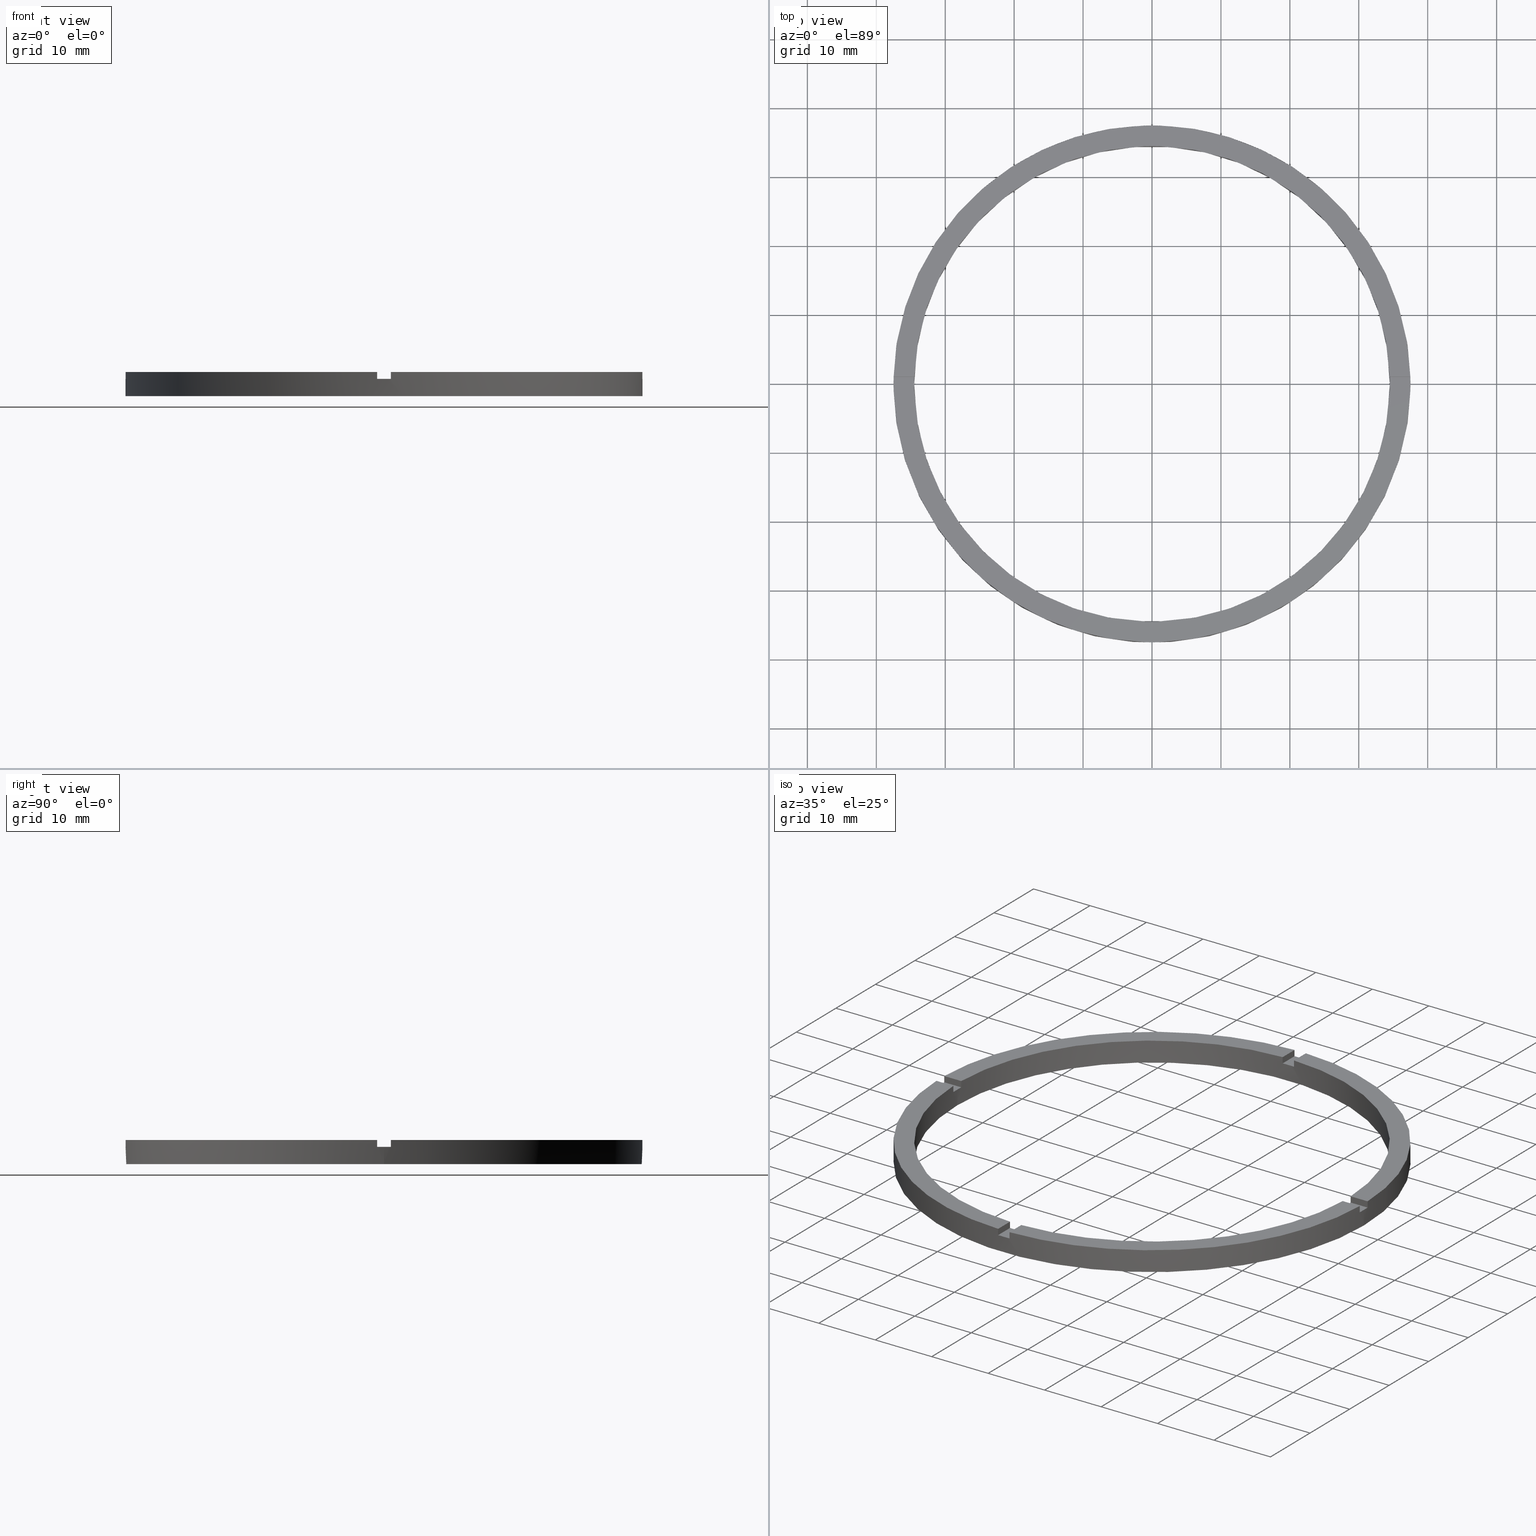
[diagram: canonical four-view strip — front | top / right | iso, engineering-drawing reading convention]
A machine part, canonical four-view strip (front | top / right | iso — engineering-drawing reading convention). The complete STEP part file that produces these views, byte-faithful:
ISO-10303-21;
HEADER;
FILE_DESCRIPTION (( 'STEP AP203' ),
    '1' );
FILE_NAME ('514155.step',
    '2024-12-26T02:42:52',
    ( 'MSI' ),
    ( '' ),
    'SwSTEP 2.0',
    'SolidWorks 2020',
    '' );
FILE_SCHEMA (( 'CONFIG_CONTROL_DESIGN' ));
ENDSEC;

DATA;
#1 = CIRCLE ( 'NONE', #656, 34.49999999999999289 ) ;
#2 = CIRCLE ( 'NONE', #723, 37.50000000000000711 ) ;
#3 = AXIS2_PLACEMENT_3D ( 'NONE', #600, #554, #716 ) ;
#4 = EDGE_CURVE ( 'NONE', #523, #440, #331, .T. ) ;
#5 = DIRECTION ( 'NONE',  ( 0.000000000000000000, 1.000000000000000000, 0.000000000000000000 ) ) ;
#6 = ADVANCED_FACE ( 'NONE', ( #79 ), #243, .T. ) ;
#7 = CARTESIAN_POINT ( 'NONE',  ( -37.48666429545313150, 0.9999999999999724665, 2.500000000000000000 ) ) ;
#8 = FACE_OUTER_BOUND ( 'NONE', #143, .T. ) ;
#9 = VECTOR ( 'NONE', #655, 1000.000000000000000 ) ;
#10 = CIRCLE ( 'NONE', #768, 34.49999999999999289 ) ;
#11 = PRODUCT_DEFINITION_FORMATION_WITH_SPECIFIED_SOURCE ( '�κ�', '', #108, .NOT_KNOWN. ) ;
#12 = CARTESIAN_POINT ( 'NONE',  ( 37.48666429545312440, -1.000000000000157430, 3.500000000000000000 ) ) ;
#13 = CIRCLE ( 'NONE', #747, 37.50000000000000711 ) ;
#14 = CIRCLE ( 'NONE', #421, 34.49999999999999289 ) ;
#15 = VECTOR ( 'NONE', #369, 1000.000000000000000 ) ;
#16 = EDGE_CURVE ( 'NONE', #732, #409, #344, .T. ) ;
#17 = ORIENTED_EDGE ( 'NONE', *, *, #16, .F. ) ;
#18 = DIRECTION ( 'NONE',  ( -1.000000000000000000, -1.951563910473907735E-16, 0.000000000000000000 ) ) ;
#19 = CARTESIAN_POINT ( 'NONE',  ( 0.9999999999998397948, -34.48550420104076153, 3.500000000000000000 ) ) ;
#20 = VECTOR ( 'NONE', #610, 1000.000000000000000 ) ;
#21 = CARTESIAN_POINT ( 'NONE',  ( -1.000000000000160316, -34.48550420104075442, 3.500000000000000000 ) ) ;
#22 = CARTESIAN_POINT ( 'NONE',  ( 0.000000000000000000, 0.000000000000000000, 2.500000000000000000 ) ) ;
#23 = VECTOR ( 'NONE', #537, 1000.000000000000000 ) ;
#24 = FACE_OUTER_BOUND ( 'NONE', #175, .T. ) ;
#25 = ORIENTED_EDGE ( 'NONE', *, *, #621, .F. ) ;
#26 = AXIS2_PLACEMENT_3D ( 'NONE', #727, #698, #261 ) ;
#27 = ORIENTED_EDGE ( 'NONE', *, *, #382, .F. ) ;
#28 = APPROVAL_STATUS ( 'not_yet_approved' ) ;
#29 = DIRECTION ( 'NONE',  ( 1.000000000000000000, 0.000000000000000000, 0.000000000000000000 ) ) ;
#30 = CARTESIAN_POINT ( 'NONE',  ( 0.000000000000000000, 0.000000000000000000, 3.500000000000000000 ) ) ;
#31 = LINE ( 'NONE', #144, #23 ) ;
#32 = DATE_TIME_ROLE ( 'creation_date' ) ;
#33 = CARTESIAN_POINT ( 'NONE',  ( 0.000000000000000000, 0.000000000000000000, 2.500000000000000000 ) ) ;
#34 = ORIENTED_EDGE ( 'NONE', *, *, #546, .T. ) ;
#35 = AXIS2_PLACEMENT_3D ( 'NONE', #497, #668, #439 ) ;
#36 = EDGE_CURVE ( 'NONE', #760, #422, #591, .T. ) ;
#37 = ORIENTED_EDGE ( 'NONE', *, *, #16, .T. ) ;
#38 = CARTESIAN_POINT ( 'NONE',  ( 34.48550420104075442, -1.000000000000157652, 2.500000000000000000 ) ) ;
#39 = PLANE ( 'NONE',  #155 ) ;
#40 = EDGE_CURVE ( 'NONE', #493, #231, #58, .T. ) ;
#41 = ORIENTED_EDGE ( 'NONE', *, *, #679, .F. ) ;
#42 = CARTESIAN_POINT ( 'NONE',  ( 0.000000000000000000, 0.000000000000000000, 3.500000000000000000 ) ) ;
#43 = ORIENTED_EDGE ( 'NONE', *, *, #82, .T. ) ;
#44 = ORIENTED_EDGE ( 'NONE', *, *, #700, .F. ) ;
#45 = DIRECTION ( 'NONE',  ( 1.000000000000000000, 1.951563910473907735E-16, 0.000000000000000000 ) ) ;
#46 = EDGE_CURVE ( 'NONE', #440, #662, #318, .T. ) ;
#47 = ORIENTED_EDGE ( 'NONE', *, *, #188, .F. ) ;
#48 = AXIS2_PLACEMENT_3D ( 'NONE', #709, #285, #222 ) ;
#49 = EDGE_CURVE ( 'NONE', #662, #440, #595, .T. ) ;
#50 = ORIENTED_EDGE ( 'NONE', *, *, #192, .F. ) ;
#51 = DIRECTION ( 'NONE',  ( -0.000000000000000000, -0.000000000000000000, -1.000000000000000000 ) ) ;
#52 = CARTESIAN_POINT ( 'NONE',  ( 0.000000000000000000, 0.000000000000000000, 2.500000000000000000 ) ) ;
#53 = VECTOR ( 'NONE', #619, 1000.000000000000000 ) ;
#54 = VECTOR ( 'NONE', #67, 1000.000000000000000 ) ;
#55 = DIRECTION ( 'NONE',  ( -1.000000000000000000, 0.000000000000000000, 0.000000000000000000 ) ) ;
#56 = EDGE_LOOP ( 'NONE', ( #210, #299, #41, #282 ) ) ;
#57 = CARTESIAN_POINT ( 'NONE',  ( 34.48550420104075442, -1.000000000000157652, 3.500000000000000000 ) ) ;
#58 = LINE ( 'NONE', #397, #53 ) ;
#59 = AXIS2_PLACEMENT_3D ( 'NONE', #532, #614, #419 ) ;
#60 = ORIENTED_EDGE ( 'NONE', *, *, #46, .T. ) ;
#61 = VECTOR ( 'NONE', #558, 1000.000000000000000 ) ;
#62 = PLANE ( 'NONE',  #424 ) ;
#63 = ORIENTED_EDGE ( 'NONE', *, *, #696, .T. ) ;
#64 = LINE ( 'NONE', #148, #326 ) ;
#65 = ORIENTED_EDGE ( 'NONE', *, *, #661, .F. ) ;
#66 = CARTESIAN_POINT ( 'NONE',  ( 0.000000000000000000, 0.000000000000000000, 2.500000000000000000 ) ) ;
#67 = DIRECTION ( 'NONE',  ( -0.000000000000000000, -1.000000000000000000, -0.000000000000000000 ) ) ;
#68 = DIRECTION ( 'NONE',  ( 0.000000000000000000, 0.000000000000000000, 1.000000000000000000 ) ) ;
#69 = ORIENTED_EDGE ( 'NONE', *, *, #188, .T. ) ;
#70 = FACE_OUTER_BOUND ( 'NONE', #420, .T. ) ;
#71 = VERTEX_POINT ( 'NONE', #195 ) ;
#72 = CARTESIAN_POINT ( 'NONE',  ( 0.000000000000000000, 0.000000000000000000, 3.500000000000000000 ) ) ;
#73 = CARTESIAN_POINT ( 'NONE',  ( 0.000000000000000000, 0.000000000000000000, 2.500000000000000000 ) ) ;
#74 = DIRECTION ( 'NONE',  ( 1.301042606982605074E-16, -1.000000000000000000, 0.000000000000000000 ) ) ;
#75 = CARTESIAN_POINT ( 'NONE',  ( 0.000000000000000000, 0.000000000000000000, 2.500000000000000000 ) ) ;
#76 = AXIS2_PLACEMENT_3D ( 'NONE', #464, #198, #254 ) ;
#77 = FACE_OUTER_BOUND ( 'NONE', #585, .T. ) ;
#78 = VECTOR ( 'NONE', #221, 1000.000000000000000 ) ;
#79 = FACE_OUTER_BOUND ( 'NONE', #152, .T. ) ;
#80 = VECTOR ( 'NONE', #715, 1000.000000000000000 ) ;
#81 = CARTESIAN_POINT ( 'NONE',  ( 34.48550420104076153, 0.9999999999998423483, 2.500000000000000000 ) ) ;
#82 = EDGE_CURVE ( 'NONE', #510, #342, #322, .T. ) ;
#83 = CYLINDRICAL_SURFACE ( 'NONE', #274, 34.49999999999999289 ) ;
#84 = APPLICATION_CONTEXT ( 'configuration controlled 3d designs of mechanical parts and assemblies' ) ;
#85 = CARTESIAN_POINT ( 'NONE',  ( 0.000000000000000000, 0.000000000000000000, 3.500000000000000000 ) ) ;
#86 = VECTOR ( 'NONE', #632, 1000.000000000000000 ) ;
#87 = VECTOR ( 'NONE', #178, 1000.000000000000000 ) ;
#88 = FACE_OUTER_BOUND ( 'NONE', #227, .T. ) ;
#89 = VECTOR ( 'NONE', #127, 1000.000000000000000 ) ;
#90 = CARTESIAN_POINT ( 'NONE',  ( -1.000000000000025313, 37.48666429545312440, 3.500000000000000000 ) ) ;
#91 = LINE ( 'NONE', #452, #348 ) ;
#92 = CIRCLE ( 'NONE', #3, 37.50000000000000711 ) ;
#93 = SECURITY_CLASSIFICATION ( '', '', #166 ) ;
#94 = APPLICATION_CONTEXT ( 'configuration controlled 3d designs of mechanical parts and assemblies' ) ;
#95 = CARTESIAN_POINT ( 'NONE',  ( -37.48666429545312440, -1.000000000000027534, 2.500000000000000000 ) ) ;
#96 = EDGE_CURVE ( 'NONE', #217, #687, #598, .T. ) ;
#97 = LINE ( 'NONE', #21, #360 ) ;
#98 = COORDINATED_UNIVERSAL_TIME_OFFSET ( 8, 0, .AHEAD. ) ;
#99 = FACE_OUTER_BOUND ( 'NONE', #736, .T. ) ;
#100 = FACE_OUTER_BOUND ( 'NONE', #405, .T. ) ;
#101 = EDGE_CURVE ( 'NONE', #754, #298, #64, .T. ) ;
#102 = CARTESIAN_POINT ( 'NONE',  ( -1.000000000000025313, 27.50000000000000355, 2.500000000000000000 ) ) ;
#103 = LOCAL_TIME ( 10, 42, 52.00000000000000000, #629 ) ;
#104 = LINE ( 'NONE', #557, #643 ) ;
#105 = PERSON_AND_ORGANIZATION ( #584, #375 ) ;
#106 = APPROVAL_ROLE ( '' ) ;
#107 = DATE_AND_TIME ( #387, #120 ) ;
#108 = PRODUCT ( '514155', '514155', '', ( #659 ) ) ;
#109 = LINE ( 'NONE', #179, #368 ) ;
#110 = AXIS2_PLACEMENT_3D ( 'NONE', #73, #503, #752 ) ;
#111 = VECTOR ( 'NONE', #612, 1000.000000000000000 ) ;
#112 =( NAMED_UNIT ( * ) PLANE_ANGLE_UNIT ( ) SI_UNIT ( $, .RADIAN. ) );
#113 = DIRECTION ( 'NONE',  ( 1.000000000000000000, 0.000000000000000000, 0.000000000000000000 ) ) ;
#114 = CALENDAR_DATE ( 2024, 26, 12 ) ;
#115 = AXIS2_PLACEMENT_3D ( 'NONE', #465, #470, #647 ) ;
#116 = VECTOR ( 'NONE', #134, 1000.000000000000000 ) ;
#117 = DATE_AND_TIME ( #366, #103 ) ;
#118 = CARTESIAN_POINT ( 'NONE',  ( 37.48666429545313150, 0.9999999999998425704, 3.500000000000000000 ) ) ;
#119 = PERSON_AND_ORGANIZATION ( #584, #375 ) ;
#120 = LOCAL_TIME ( 10, 42, 52.00000000000000000, #123 ) ;
#121 = DIRECTION ( 'NONE',  ( 1.000000000000000000, 0.000000000000000000, 0.000000000000000000 ) ) ;
#122 = CARTESIAN_POINT ( 'NONE',  ( 0.000000000000000000, 0.000000000000000000, 3.500000000000000000 ) ) ;
#123 = COORDINATED_UNIVERSAL_TIME_OFFSET ( 8, 0, .AHEAD. ) ;
#124 = DIRECTION ( 'NONE',  ( 0.000000000000000000, 0.000000000000000000, 1.000000000000000000 ) ) ;
#125 = DIRECTION ( 'NONE',  ( 1.301042606982605074E-16, -1.000000000000000000, 0.000000000000000000 ) ) ;
#126 = ORIENTED_EDGE ( 'NONE', *, *, #101, .T. ) ;
#127 = DIRECTION ( 'NONE',  ( 1.000000000000000000, 1.951563910473907735E-16, -0.000000000000000000 ) ) ;
#128 = VERTEX_POINT ( 'NONE', #396 ) ;
#129 = CARTESIAN_POINT ( 'NONE',  ( 0.9999999999999746869, 27.50000000000000355, 2.500000000000000000 ) ) ;
#130 = ORIENTED_EDGE ( 'NONE', *, *, #382, .T. ) ;
#131 = ORIENTED_EDGE ( 'NONE', *, *, #216, .T. ) ;
#132 = CARTESIAN_POINT ( 'NONE',  ( 37.50000000000000711, 4.592425496802575156E-15, 0.000000000000000000 ) ) ;
#133 = AXIS2_PLACEMENT_3D ( 'NONE', #199, #684, #719 ) ;
#134 = DIRECTION ( 'NONE',  ( 1.000000000000000000, 1.951563910473907735E-16, -0.000000000000000000 ) ) ;
#135 = VECTOR ( 'NONE', #577, 1000.000000000000000 ) ;
#136 = ORIENTED_EDGE ( 'NONE', *, *, #664, .F. ) ;
#137 = EDGE_CURVE ( 'NONE', #217, #515, #592, .T. ) ;
#138 = ORIENTED_EDGE ( 'NONE', *, *, #425, .T. ) ;
#139 = CARTESIAN_POINT ( 'NONE',  ( -37.50000000000000711, 0.000000000000000000, 3.500000000000000000 ) ) ;
#140 = ADVANCED_FACE ( 'NONE', ( #334 ), #62, .T. ) ;
#141 = ORIENTED_EDGE ( 'NONE', *, *, #169, .T. ) ;
#142 = CC_DESIGN_PERSON_AND_ORGANIZATION_ASSIGNMENT ( #119, #203, ( #11 ) ) ;
#143 = EDGE_LOOP ( 'NONE', ( #654, #27, #568, #136, #735, #236, #37, #563, #164, #220, #310, #498 ) ) ;
#144 = CARTESIAN_POINT ( 'NONE',  ( 0.9999999999999746869, 34.48550420104076153, 3.500000000000000000 ) ) ;
#145 = CARTESIAN_POINT ( 'NONE',  ( -34.48550420104075442, -1.000000000000026867, 3.500000000000000000 ) ) ;
#146 = ORIENTED_EDGE ( 'NONE', *, *, #714, .T. ) ;
#147 = ORIENTED_EDGE ( 'NONE', *, *, #255, .F. ) ;
#148 = CARTESIAN_POINT ( 'NONE',  ( 27.49999999999999645, -1.000000000000158096, 2.500000000000000000 ) ) ;
#149 = ORIENTED_EDGE ( 'NONE', *, *, #46, .F. ) ;
#150 = PRODUCT_DEFINITION ( 'δ֪', '', #11, #462 ) ;
#151 = ADVANCED_FACE ( 'NONE', ( #88 ), #538, .F. ) ;
#152 = EDGE_LOOP ( 'NONE', ( #502, #224, #65, #740 ) ) ;
#153 = CARTESIAN_POINT ( 'NONE',  ( 0.000000000000000000, 0.000000000000000000, 3.500000000000000000 ) ) ;
#154 = VERTEX_POINT ( 'NONE', #305 ) ;
#155 = AXIS2_PLACEMENT_3D ( 'NONE', #122, #170, #650 ) ;
#156 = DIRECTION ( 'NONE',  ( 0.000000000000000000, 0.000000000000000000, 1.000000000000000000 ) ) ;
#157 = CARTESIAN_POINT ( 'NONE',  ( 0.000000000000000000, 0.000000000000000000, 0.000000000000000000 ) ) ;
#158 = ORIENTED_EDGE ( 'NONE', *, *, #513, .F. ) ;
#159 = CARTESIAN_POINT ( 'NONE',  ( 34.48550420104076153, 0.9999999999998423483, 3.500000000000000000 ) ) ;
#160 = APPROVAL_ROLE ( '' ) ;
#161 = VERTEX_POINT ( 'NONE', #118 ) ;
#162 = DIRECTION ( 'NONE',  ( -0.000000000000000000, -0.000000000000000000, -1.000000000000000000 ) ) ;
#163 = EDGE_CURVE ( 'NONE', #687, #71, #623, .T. ) ;
#164 = ORIENTED_EDGE ( 'NONE', *, *, #599, .T. ) ;
#165 = ORIENTED_EDGE ( 'NONE', *, *, #338, .F. ) ;
#166 = SECURITY_CLASSIFICATION_LEVEL ( 'unclassified' ) ;
#167 = CARTESIAN_POINT ( 'NONE',  ( 0.000000000000000000, 0.000000000000000000, 2.500000000000000000 ) ) ;
#168 = ORIENTED_EDGE ( 'NONE', *, *, #388, .F. ) ;
#169 = EDGE_CURVE ( 'NONE', #691, #219, #628, .T. ) ;
#170 = DIRECTION ( 'NONE',  ( 0.000000000000000000, 0.000000000000000000, 1.000000000000000000 ) ) ;
#171 = PERSON_AND_ORGANIZATION_ROLE ( 'creator' ) ;
#172 = DIRECTION ( 'NONE',  ( 0.000000000000000000, 0.000000000000000000, 1.000000000000000000 ) ) ;
#173 = ORIENTED_EDGE ( 'NONE', *, *, #4, .T. ) ;
#174 = ORIENTED_EDGE ( 'NONE', *, *, #550, .F. ) ;
#175 = EDGE_LOOP ( 'NONE', ( #438, #743, #426, #428 ) ) ;
#176 = CARTESIAN_POINT ( 'NONE',  ( 27.49999999999999645, -1.000000000000158096, 3.500000000000000000 ) ) ;
#177 = DIRECTION ( 'NONE',  ( 1.000000000000000000, 0.000000000000000000, 0.000000000000000000 ) ) ;
#178 = DIRECTION ( 'NONE',  ( -1.301042606982605074E-16, 1.000000000000000000, -0.000000000000000000 ) ) ;
#179 = CARTESIAN_POINT ( 'NONE',  ( 34.48550420104075442, -1.000000000000157652, 3.500000000000000000 ) ) ;
#180 = ORIENTED_EDGE ( 'NONE', *, *, #163, .F. ) ;
#181 = AXIS2_PLACEMENT_3D ( 'NONE', #66, #252, #193 ) ;
#182 = AXIS2_PLACEMENT_3D ( 'NONE', #167, #461, #403 ) ;
#183 = CARTESIAN_POINT ( 'NONE',  ( 0.9999999999999746869, 27.50000000000000355, 2.500000000000000000 ) ) ;
#184 = CARTESIAN_POINT ( 'NONE',  ( -1.000000000000161204, -27.50000000000018474, 3.500000000000000000 ) ) ;
#185 = CARTESIAN_POINT ( 'NONE',  ( 0.000000000000000000, 0.000000000000000000, 0.000000000000000000 ) ) ;
#186 = AXIS2_PLACEMENT_3D ( 'NONE', #228, #540, #444 ) ;
#187 = CARTESIAN_POINT ( 'NONE',  ( -27.50000000000019185, 0.9999999999999744649, 3.500000000000000000 ) ) ;
#188 = EDGE_CURVE ( 'NONE', #730, #71, #626, .T. ) ;
#189 = CARTESIAN_POINT ( 'NONE',  ( 0.000000000000000000, 0.000000000000000000, 2.500000000000000000 ) ) ;
#190 = EDGE_CURVE ( 'NONE', #230, #128, #346, .T. ) ;
#191 = DIRECTION ( 'NONE',  ( -6.505213034913025371E-17, 1.000000000000000000, 0.000000000000000000 ) ) ;
#192 = EDGE_CURVE ( 'NONE', #523, #758, #92, .T. ) ;
#193 = DIRECTION ( 'NONE',  ( 1.000000000000000000, 0.000000000000000000, 0.000000000000000000 ) ) ;
#194 = CARTESIAN_POINT ( 'NONE',  ( 0.9999999999998389066, -27.50000000000018474, 3.500000000000000000 ) ) ;
#195 = CARTESIAN_POINT ( 'NONE',  ( 0.9999999999998397948, -34.48550420104076153, 2.500000000000000000 ) ) ;
#196 = SHAPE_DEFINITION_REPRESENTATION ( #301, #548 ) ;
#197 = AXIS2_PLACEMENT_3D ( 'NONE', #306, #453, #720 ) ;
#198 = DIRECTION ( 'NONE',  ( -0.000000000000000000, -0.000000000000000000, -1.000000000000000000 ) ) ;
#199 = CARTESIAN_POINT ( 'NONE',  ( 0.000000000000000000, 0.000000000000000000, 2.500000000000000000 ) ) ;
#200 = ADVANCED_FACE ( 'NONE', ( #100 ), #378, .T. ) ;
#201 = CC_DESIGN_PERSON_AND_ORGANIZATION_ASSIGNMENT ( #363, #208, ( #93 ) ) ;
#202 = CARTESIAN_POINT ( 'NONE',  ( 0.9999999999999746869, 37.48666429545313150, 3.500000000000000000 ) ) ;
#203 = PERSON_AND_ORGANIZATION_ROLE ( 'design_supplier' ) ;
#204 = CARTESIAN_POINT ( 'NONE',  ( 0.000000000000000000, 0.000000000000000000, 3.500000000000000000 ) ) ;
#205 = AXIS2_PLACEMENT_3D ( 'NONE', #573, #413, #121 ) ;
#206 = DIRECTION ( 'NONE',  ( 1.000000000000000000, 0.000000000000000000, 0.000000000000000000 ) ) ;
#207 = AXIS2_PLACEMENT_3D ( 'NONE', #276, #590, #753 ) ;
#208 = PERSON_AND_ORGANIZATION_ROLE ( 'classification_officer' ) ;
#209 = DIRECTION ( 'NONE',  ( 1.000000000000000000, 0.000000000000000000, -0.000000000000000000 ) ) ;
#210 = ORIENTED_EDGE ( 'NONE', *, *, #476, .T. ) ;
#211 = AXIS2_PLACEMENT_3D ( 'NONE', #367, #303, #45 ) ;
#212 = EDGE_CURVE ( 'NONE', #613, #491, #365, .T. ) ;
#213 = ORIENTED_EDGE ( 'NONE', *, *, #694, .T. ) ;
#214 = ORIENTED_EDGE ( 'NONE', *, *, #661, .T. ) ;
#215 = ORIENTED_EDGE ( 'NONE', *, *, #190, .T. ) ;
#216 = EDGE_CURVE ( 'NONE', #340, #242, #13, .T. ) ;
#217 = VERTEX_POINT ( 'NONE', #349 ) ;
#218 = CARTESIAN_POINT ( 'NONE',  ( 0.000000000000000000, 0.000000000000000000, 0.000000000000000000 ) ) ;
#219 = VERTEX_POINT ( 'NONE', #474 ) ;
#220 = ORIENTED_EDGE ( 'NONE', *, *, #216, .F. ) ;
#221 = DIRECTION ( 'NONE',  ( -0.000000000000000000, -0.000000000000000000, -1.000000000000000000 ) ) ;
#222 = DIRECTION ( 'NONE',  ( 1.000000000000000000, 0.000000000000000000, 0.000000000000000000 ) ) ;
#223 = EDGE_LOOP ( 'NONE', ( #748, #578, #312, #141 ) ) ;
#224 = ORIENTED_EDGE ( 'NONE', *, *, #297, .F. ) ;
#225 = EDGE_CURVE ( 'NONE', #754, #493, #275, .T. ) ;
#226 = ORIENTED_EDGE ( 'NONE', *, *, #583, .F. ) ;
#227 = EDGE_LOOP ( 'NONE', ( #521, #414, #519, #17 ) ) ;
#228 = CARTESIAN_POINT ( 'NONE',  ( 27.49999999999999645, -1.000000000000158096, 2.500000000000000000 ) ) ;
#229 = EDGE_CURVE ( 'NONE', #219, #672, #526, .T. ) ;
#230 = VERTEX_POINT ( 'NONE', #7 ) ;
#231 = VERTEX_POINT ( 'NONE', #652 ) ;
#232 = ADVANCED_FACE ( 'NONE', ( #779 ), #320, .T. ) ;
#233 = VERTEX_POINT ( 'NONE', #12 ) ;
#234 = CARTESIAN_POINT ( 'NONE',  ( -37.50000000000000711, 0.000000000000000000, 0.000000000000000000 ) ) ;
#235 = ORIENTED_EDGE ( 'NONE', *, *, #546, .F. ) ;
#236 = ORIENTED_EDGE ( 'NONE', *, *, #693, .F. ) ;
#237 = ORIENTED_EDGE ( 'NONE', *, *, #700, .T. ) ;
#238 = CARTESIAN_POINT ( 'NONE',  ( 0.000000000000000000, 0.000000000000000000, 3.500000000000000000 ) ) ;
#239 = EDGE_LOOP ( 'NONE', ( #50, #173, #60, #683, #737, #215, #588, #237, #329, #339, #165, #674 ) ) ;
#240 = DIRECTION ( 'NONE',  ( 1.301042606982605074E-16, -1.000000000000000000, 0.000000000000000000 ) ) ;
#241 = DIRECTION ( 'NONE',  ( -1.000000000000000000, -1.301042606982605074E-16, 0.000000000000000000 ) ) ;
#242 = VERTEX_POINT ( 'NONE', #95 ) ;
#243 = PLANE ( 'NONE',  #197 ) ;
#244 = EDGE_LOOP ( 'NONE', ( #43, #408, #25, #44 ) ) ;
#245 = ORIENTED_EDGE ( 'NONE', *, *, #330, .T. ) ;
#246 = ORIENTED_EDGE ( 'NONE', *, *, #212, .T. ) ;
#247 = DIRECTION ( 'NONE',  ( -1.000000000000000000, -6.505213034913025371E-17, 0.000000000000000000 ) ) ;
#248 = CARTESIAN_POINT ( 'NONE',  ( 0.9999999999998400169, -37.48666429545313150, 3.500000000000000000 ) ) ;
#249 = ORIENTED_EDGE ( 'NONE', *, *, #513, .T. ) ;
#250 = ORIENTED_EDGE ( 'NONE', *, *, #353, .F. ) ;
#251 = ORIENTED_EDGE ( 'NONE', *, *, #212, .F. ) ;
#252 = DIRECTION ( 'NONE',  ( -0.000000000000000000, 0.000000000000000000, 1.000000000000000000 ) ) ;
#253 = AXIS2_PLACEMENT_3D ( 'NONE', #42, #124, #177 ) ;
#254 = DIRECTION ( 'NONE',  ( -1.000000000000000000, 0.000000000000000000, 0.000000000000000000 ) ) ;
#255 = EDGE_CURVE ( 'NONE', #427, #512, #547, .T. ) ;
#256 = CIRCLE ( 'NONE', #572, 34.49999999999999289 ) ;
#257 = FACE_OUTER_BOUND ( 'NONE', #404, .T. ) ;
#258 = DIRECTION ( 'NONE',  ( 0.000000000000000000, 0.000000000000000000, 1.000000000000000000 ) ) ;
#259 = CARTESIAN_POINT ( 'NONE',  ( 0.9999999999998397948, -34.48550420104076153, 3.500000000000000000 ) ) ;
#260 = VECTOR ( 'NONE', #162, 1000.000000000000000 ) ;
#261 = DIRECTION ( 'NONE',  ( 1.000000000000000000, 0.000000000000000000, 0.000000000000000000 ) ) ;
#262 = LINE ( 'NONE', #411, #273 ) ;
#263 = CC_DESIGN_APPROVAL ( #607, ( #150 ) ) ;
#264 = LINE ( 'NONE', #202, #555 ) ;
#265 = CARTESIAN_POINT ( 'NONE',  ( -34.49999999999999289, 0.000000000000000000, 0.000000000000000000 ) ) ;
#266 = LINE ( 'NONE', #184, #284 ) ;
#267 = DIRECTION ( 'NONE',  ( -0.000000000000000000, -0.000000000000000000, -1.000000000000000000 ) ) ;
#268 = CYLINDRICAL_SURFACE ( 'NONE', #323, 37.50000000000000711 ) ;
#269 = VECTOR ( 'NONE', #689, 1000.000000000000000 ) ;
#270 = CIRCLE ( 'NONE', #317, 34.49999999999999289 ) ;
#271 = APPLICATION_PROTOCOL_DEFINITION ( 'international standard', 'config_control_design', 1994, #84 ) ;
#272 = DIRECTION ( 'NONE',  ( 0.000000000000000000, 0.000000000000000000, 1.000000000000000000 ) ) ;
#273 = VECTOR ( 'NONE', #18, 1000.000000000000000 ) ;
#274 = AXIS2_PLACEMENT_3D ( 'NONE', #782, #688, #395 ) ;
#275 = CIRCLE ( 'NONE', #702, 34.49999999999999289 ) ;
#276 = CARTESIAN_POINT ( 'NONE',  ( 0.000000000000000000, 0.000000000000000000, 2.500000000000000000 ) ) ;
#277 = CIRCLE ( 'NONE', #207, 34.49999999999999289 ) ;
#278 = CIRCLE ( 'NONE', #692, 37.50000000000000711 ) ;
#279 = DIRECTION ( 'NONE',  ( 0.000000000000000000, 0.000000000000000000, 1.000000000000000000 ) ) ;
#280 = CARTESIAN_POINT ( 'NONE',  ( 0.000000000000000000, 0.000000000000000000, 3.500000000000000000 ) ) ;
#281 = LINE ( 'NONE', #765, #536 ) ;
#282 = ORIENTED_EDGE ( 'NONE', *, *, #562, .F. ) ;
#283 = CARTESIAN_POINT ( 'NONE',  ( -27.50000000000019185, -1.000000000000025535, 2.500000000000000000 ) ) ;
#284 = VECTOR ( 'NONE', #240, 1000.000000000000000 ) ;
#285 = DIRECTION ( 'NONE',  ( -0.000000000000000000, 0.000000000000000000, 1.000000000000000000 ) ) ;
#286 = EDGE_CURVE ( 'NONE', #682, #409, #539, .T. ) ;
#287 = CARTESIAN_POINT ( 'NONE',  ( 34.49999999999999289, 4.225031457058367344E-15, 2.500000000000000000 ) ) ;
#288 = LINE ( 'NONE', #187, #296 ) ;
#289 = PRODUCT_RELATED_PRODUCT_CATEGORY ( 'detail', '', ( #108 ) ) ;
#290 = FACE_OUTER_BOUND ( 'NONE', #430, .T. ) ;
#291 = ORIENTED_EDGE ( 'NONE', *, *, #456, .T. ) ;
#292 = LINE ( 'NONE', #761, #559 ) ;
#293 = ORIENTED_EDGE ( 'NONE', *, *, #49, .F. ) ;
#294 = AXIS2_PLACEMENT_3D ( 'NONE', #777, #68, #506 ) ;
#295 = PLANE ( 'NONE',  #186 ) ;
#296 = VECTOR ( 'NONE', #477, 1000.000000000000000 ) ;
#297 = EDGE_CURVE ( 'NONE', #760, #154, #10, .T. ) ;
#298 = VERTEX_POINT ( 'NONE', #746 ) ;
#299 = ORIENTED_EDGE ( 'NONE', *, *, #255, .T. ) ;
#300 = ORIENTED_EDGE ( 'NONE', *, *, #481, .T. ) ;
#301 = PRODUCT_DEFINITION_SHAPE ( 'NONE', 'NONE',  #150 ) ;
#302 = CARTESIAN_POINT ( 'NONE',  ( -1.000000000000161204, -27.50000000000018474, 2.500000000000000000 ) ) ;
#303 = DIRECTION ( 'NONE',  ( 1.951563910473907735E-16, -1.000000000000000000, 0.000000000000000000 ) ) ;
#304 = ORIENTED_EDGE ( 'NONE', *, *, #40, .F. ) ;
#305 = CARTESIAN_POINT ( 'NONE',  ( -1.000000000000160316, -34.48550420104075442, 3.500000000000000000 ) ) ;
#306 = CARTESIAN_POINT ( 'NONE',  ( 0.000000000000000000, 0.000000000000000000, 3.500000000000000000 ) ) ;
#307 = CC_DESIGN_PERSON_AND_ORGANIZATION_ASSIGNMENT ( #641, #407, ( #11 ) ) ;
#308 = ADVANCED_FACE ( 'NONE', ( #783 ), #333, .T. ) ;
#309 = VERTEX_POINT ( 'NONE', #328 ) ;
#310 = ORIENTED_EDGE ( 'NONE', *, *, #669, .T. ) ;
#311 = CARTESIAN_POINT ( 'NONE',  ( -27.50000000000019185, -1.000000000000025535, 3.500000000000000000 ) ) ;
#312 = ORIENTED_EDGE ( 'NONE', *, *, #330, .F. ) ;
#313 = CARTESIAN_POINT ( 'NONE',  ( 0.9999999999998400169, -37.48666429545313150, 2.500000000000000000 ) ) ;
#314 = ORIENTED_EDGE ( 'NONE', *, *, #388, .T. ) ;
#315 = DIRECTION ( 'NONE',  ( 1.000000000000000000, 6.505213034913025371E-17, 0.000000000000000000 ) ) ;
#316 = AXIS2_PLACEMENT_3D ( 'NONE', #460, #642, #522 ) ;
#317 = AXIS2_PLACEMENT_3D ( 'NONE', #30, #697, #206 ) ;
#318 = CIRCLE ( 'NONE', #337, 37.50000000000000711 ) ;
#319 = ADVANCED_FACE ( 'NONE', ( #781 ), #739, .F. ) ;
#320 = PLANE ( 'NONE',  #596 ) ;
#321 = ORIENTED_EDGE ( 'NONE', *, *, #714, .F. ) ;
#322 = LINE ( 'NONE', #566, #54 ) ;
#323 = AXIS2_PLACEMENT_3D ( 'NONE', #153, #520, #55 ) ;
#324 = VECTOR ( 'NONE', #772, 1000.000000000000000 ) ;
#325 = DIRECTION ( 'NONE',  ( 0.000000000000000000, 0.000000000000000000, 1.000000000000000000 ) ) ;
#326 = VECTOR ( 'NONE', #315, 1000.000000000000000 ) ;
#327 = CARTESIAN_POINT ( 'NONE',  ( 37.48666429545313150, 0.9999999999998425704, 2.500000000000000000 ) ) ;
#328 = CARTESIAN_POINT ( 'NONE',  ( 0.9999999999999746869, 34.48550420104076153, 3.500000000000000000 ) ) ;
#329 = ORIENTED_EDGE ( 'NONE', *, *, #229, .F. ) ;
#330 = EDGE_CURVE ( 'NONE', #691, #412, #1, .T. ) ;
#331 = LINE ( 'NONE', #615, #324 ) ;
#332 = VECTOR ( 'NONE', #450, 1000.000000000000000 ) ;
#333 = PLANE ( 'NONE',  #182 ) ;
#334 = FACE_OUTER_BOUND ( 'NONE', #516, .T. ) ;
#335 = DIRECTION ( 'NONE',  ( -1.000000000000000000, 0.000000000000000000, 0.000000000000000000 ) ) ;
#336 = DATE_TIME_ROLE ( 'classification_date' ) ;
#337 = AXIS2_PLACEMENT_3D ( 'NONE', #157, #717, #500 ) ;
#338 = EDGE_CURVE ( 'NONE', #161, #447, #534, .T. ) ;
#339 = ORIENTED_EDGE ( 'NONE', *, *, #473, .T. ) ;
#340 = VERTEX_POINT ( 'NONE', #423 ) ;
#341 = LINE ( 'NONE', #311, #116 ) ;
#342 = VERTEX_POINT ( 'NONE', #429 ) ;
#343 = APPROVAL_STATUS ( 'not_yet_approved' ) ;
#344 = LINE ( 'NONE', #389, #332 ) ;
#345 = LINE ( 'NONE', #139, #78 ) ;
#346 = LINE ( 'NONE', #492, #356 ) ;
#347 = CC_DESIGN_DATE_AND_TIME_ASSIGNMENT ( #117, #336, ( #93 ) ) ;
#348 = VECTOR ( 'NONE', #5, 1000.000000000000000 ) ;
#349 = CARTESIAN_POINT ( 'NONE',  ( 0.9999999999998400169, -37.48666429545313150, 3.500000000000000000 ) ) ;
#350 = CIRCLE ( 'NONE', #181, 37.50000000000000711 ) ;
#351 = VECTOR ( 'NONE', #449, 1000.000000000000000 ) ;
#352 = CARTESIAN_POINT ( 'NONE',  ( -1.000000000000025313, 37.48666429545312440, 3.500000000000000000 ) ) ;
#353 = EDGE_CURVE ( 'NONE', #613, #576, #277, .T. ) ;
#354 = DIRECTION ( 'NONE',  ( 1.000000000000000000, 0.000000000000000000, 0.000000000000000000 ) ) ;
#355 = LINE ( 'NONE', #352, #620 ) ;
#356 = VECTOR ( 'NONE', #358, 1000.000000000000000 ) ;
#357 = DIRECTION ( 'NONE',  ( 1.000000000000000000, 0.000000000000000000, -0.000000000000000000 ) ) ;
#358 = DIRECTION ( 'NONE',  ( 0.000000000000000000, 0.000000000000000000, 1.000000000000000000 ) ) ;
#359 = APPROVAL_PERSON_ORGANIZATION ( #105, #607, #160 ) ;
#360 = VECTOR ( 'NONE', #279, 1000.000000000000000 ) ;
#361 = LOCAL_TIME ( 10, 42, 52.00000000000000000, #98 ) ;
#362 = CIRCLE ( 'NONE', #205, 34.49999999999999289 ) ;
#363 = PERSON_AND_ORGANIZATION ( #584, #375 ) ;
#364 = AXIS2_PLACEMENT_3D ( 'NONE', #218, #646, #651 ) ;
#365 = LINE ( 'NONE', #479, #15 ) ;
#366 = CALENDAR_DATE ( 2024, 26, 12 ) ;
#367 = CARTESIAN_POINT ( 'NONE',  ( -27.50000000000019185, -1.000000000000025535, 2.500000000000000000 ) ) ;
#368 = VECTOR ( 'NONE', #483, 1000.000000000000000 ) ;
#369 = DIRECTION ( 'NONE',  ( 0.000000000000000000, 0.000000000000000000, 1.000000000000000000 ) ) ;
#370 = DATE_AND_TIME ( #114, #361 ) ;
#371 = LINE ( 'NONE', #176, #135 ) ;
#372 = COORDINATED_UNIVERSAL_TIME_OFFSET ( 8, 0, .AHEAD. ) ;
#373 = PERSON_AND_ORGANIZATION ( #584, #375 ) ;
#374 = DIRECTION ( 'NONE',  ( -1.000000000000000000, -6.505213034913025371E-17, -0.000000000000000000 ) ) ;
#375 = ORGANIZATION ( 'δָ��', 'δָ��', '' ) ;
#376 = DIRECTION ( 'NONE',  ( 0.000000000000000000, 0.000000000000000000, 1.000000000000000000 ) ) ;
#377 = FACE_OUTER_BOUND ( 'NONE', #56, .T. ) ;
#378 = PLANE ( 'NONE',  #480 ) ;
#379 = PERSON_AND_ORGANIZATION ( #584, #375 ) ;
#380 = AXIS2_PLACEMENT_3D ( 'NONE', #183, #482, #638 ) ;
#381 = CALENDAR_DATE ( 2024, 26, 12 ) ;
#382 = EDGE_CURVE ( 'NONE', #298, #523, #2, .T. ) ;
#383 = APPROVAL_PERSON_ORGANIZATION ( #631, #594, #469 ) ;
#384 = ADVANCED_FACE ( 'NONE', ( #257 ), #39, .T. ) ;
#385 = CARTESIAN_POINT ( 'NONE',  ( -34.48550420104076153, 0.9999999999999731326, 2.500000000000000000 ) ) ;
#386 = FACE_OUTER_BOUND ( 'NONE', #686, .T. ) ;
#387 = CALENDAR_DATE ( 2024, 26, 12 ) ;
#388 = EDGE_CURVE ( 'NONE', #515, #653, #270, .T. ) ;
#389 = CARTESIAN_POINT ( 'NONE',  ( -1.000000000000160094, -37.48666429545312440, 3.500000000000000000 ) ) ;
#390 = ORIENTED_EDGE ( 'NONE', *, *, #394, .F. ) ;
#391 = PLANE ( 'NONE',  #511 ) ;
#392 = EDGE_LOOP ( 'NONE', ( #304, #435, #147, #393, #235, #245, #486, #146, #251, #759, #725, #399 ) ) ;
#393 = ORIENTED_EDGE ( 'NONE', *, *, #434, .T. ) ;
#394 = EDGE_CURVE ( 'NONE', #298, #233, #549, .T. ) ;
#395 = DIRECTION ( 'NONE',  ( -1.000000000000000000, 0.000000000000000000, 0.000000000000000000 ) ) ;
#396 = CARTESIAN_POINT ( 'NONE',  ( -37.48666429545313150, 0.9999999999999724665, 3.500000000000000000 ) ) ;
#397 = CARTESIAN_POINT ( 'NONE',  ( 34.49999999999999289, 4.225031457058367344E-15, 3.500000000000000000 ) ) ;
#398 = ADVANCED_FACE ( 'NONE', ( #533 ), #467, .F. ) ;
#399 = ORIENTED_EDGE ( 'NONE', *, *, #524, .F. ) ;
#400 = ORIENTED_EDGE ( 'NONE', *, *, #192, .T. ) ;
#401 = FACE_BOUND ( 'NONE', #507, .T. ) ;
#402 = ORIENTED_EDGE ( 'NONE', *, *, #524, .T. ) ;
#403 = DIRECTION ( 'NONE',  ( 1.000000000000000000, 0.000000000000000000, -0.000000000000000000 ) ) ;
#404 = EDGE_LOOP ( 'NONE', ( #589, #168, #755, #681 ) ) ;
#405 = EDGE_LOOP ( 'NONE', ( #489, #418, #174, #321 ) ) ;
#406 = DIRECTION ( 'NONE',  ( 1.000000000000000000, 0.000000000000000000, 0.000000000000000000 ) ) ;
#407 = PERSON_AND_ORGANIZATION_ROLE ( 'creator' ) ;
#408 = ORIENTED_EDGE ( 'NONE', *, *, #478, .T. ) ;
#409 = VERTEX_POINT ( 'NONE', #581 ) ;
#410 = ORIENTED_EDGE ( 'NONE', *, *, #583, .T. ) ;
#411 = CARTESIAN_POINT ( 'NONE',  ( -27.50000000000019185, 0.9999999999999744649, 2.500000000000000000 ) ) ;
#412 = VERTEX_POINT ( 'NONE', #701 ) ;
#413 = DIRECTION ( 'NONE',  ( 0.000000000000000000, 0.000000000000000000, 1.000000000000000000 ) ) ;
#414 = ORIENTED_EDGE ( 'NONE', *, *, #710, .T. ) ;
#415 = DIRECTION ( 'NONE',  ( 0.000000000000000000, 0.000000000000000000, 1.000000000000000000 ) ) ;
#416 = CLOSED_SHELL ( 'NONE', ( #690, #437, #200, #553, #384, #6, #780, #451, #569, #605, #712, #140, #319, #151, #685, #640, #560, #232, #398, #455, #308 ) ) ;
#417 = APPROVAL_STATUS ( 'not_yet_approved' ) ;
#418 = ORIENTED_EDGE ( 'NONE', *, *, #463, .T. ) ;
#419 = DIRECTION ( 'NONE',  ( 1.000000000000000000, 0.000000000000000000, 0.000000000000000000 ) ) ;
#420 = EDGE_LOOP ( 'NONE', ( #751, #670, #729, #604, #63, #678, #504, #442, #69, #158, #314, #226 ) ) ;
#421 = AXIS2_PLACEMENT_3D ( 'NONE', #185, #671, #707 ) ;
#422 = VERTEX_POINT ( 'NONE', #744 ) ;
#423 = CARTESIAN_POINT ( 'NONE',  ( -37.50000000000000711, 0.000000000000000000, 2.500000000000000000 ) ) ;
#424 = AXIS2_PLACEMENT_3D ( 'NONE', #189, #713, #771 ) ;
#425 = EDGE_CURVE ( 'NONE', #613, #230, #262, .T. ) ;
#426 = ORIENTED_EDGE ( 'NONE', *, *, #476, .F. ) ;
#427 = VERTEX_POINT ( 'NONE', #159 ) ;
#428 = ORIENTED_EDGE ( 'NONE', *, *, #338, .T. ) ;
#429 = CARTESIAN_POINT ( 'NONE',  ( -1.000000000000025313, 34.48550420104075442, 3.500000000000000000 ) ) ;
#430 = EDGE_LOOP ( 'NONE', ( #484, #410, #501, #390 ) ) ;
#431 = CC_DESIGN_APPROVAL ( #718, ( #11 ) ) ;
#432 = CARTESIAN_POINT ( 'NONE',  ( -34.48550420104076153, 0.9999999999999731326, 3.500000000000000000 ) ) ;
#433 = CARTESIAN_POINT ( 'NONE',  ( -1.000000000000025313, 37.48666429545312440, 2.500000000000000000 ) ) ;
#434 = EDGE_CURVE ( 'NONE', #427, #309, #256, .T. ) ;
#435 = ORIENTED_EDGE ( 'NONE', *, *, #635, .T. ) ;
#436 = EDGE_LOOP ( 'NONE', ( #741, #34, #213, #749 ) ) ;
#437 = ADVANCED_FACE ( 'NONE', ( #770 ), #542, .T. ) ;
#438 = ORIENTED_EDGE ( 'NONE', *, *, #694, .F. ) ;
#439 = DIRECTION ( 'NONE',  ( 1.000000000000000000, 0.000000000000000000, 0.000000000000000000 ) ) ;
#440 = VERTEX_POINT ( 'NONE', #132 ) ;
#441 = CARTESIAN_POINT ( 'NONE',  ( 0.000000000000000000, 0.000000000000000000, 2.500000000000000000 ) ) ;
#442 = ORIENTED_EDGE ( 'NONE', *, *, #710, .F. ) ;
#443 = DIRECTION ( 'NONE',  ( 1.000000000000000000, 0.000000000000000000, 0.000000000000000000 ) ) ;
#444 = DIRECTION ( 'NONE',  ( 1.000000000000000000, 6.505213034913025371E-17, 0.000000000000000000 ) ) ;
#445 = DIRECTION ( 'NONE',  ( 0.000000000000000000, 0.000000000000000000, 1.000000000000000000 ) ) ;
#446 = AXIS2_PLACEMENT_3D ( 'NONE', #102, #335, #415 ) ;
#447 = VERTEX_POINT ( 'NONE', #571 ) ;
#448 = PLANE ( 'NONE',  #380 ) ;
#449 = DIRECTION ( 'NONE',  ( 0.000000000000000000, 1.000000000000000000, 0.000000000000000000 ) ) ;
#450 = DIRECTION ( 'NONE',  ( 0.000000000000000000, 0.000000000000000000, 1.000000000000000000 ) ) ;
#451 = ADVANCED_FACE ( 'NONE', ( #8 ), #268, .T. ) ;
#452 = CARTESIAN_POINT ( 'NONE',  ( 0.9999999999999746869, 27.50000000000000355, 3.500000000000000000 ) ) ;
#453 = DIRECTION ( 'NONE',  ( 0.000000000000000000, 0.000000000000000000, 1.000000000000000000 ) ) ;
#454 = AXIS2_PLACEMENT_3D ( 'NONE', #775, #191, #247 ) ;
#455 = ADVANCED_FACE ( 'NONE', ( #551 ), #448, .F. ) ;
#456 = EDGE_CURVE ( 'NONE', #496, #231, #14, .T. ) ;
#457 = DIRECTION ( 'NONE',  ( 1.000000000000000000, 0.000000000000000000, 0.000000000000000000 ) ) ;
#458 = DIRECTION ( 'NONE',  ( 0.000000000000000000, -0.000000000000000000, 1.000000000000000000 ) ) ;
#459 = CC_DESIGN_PERSON_AND_ORGANIZATION_ASSIGNMENT ( #630, #171, ( #150 ) ) ;
#460 = CARTESIAN_POINT ( 'NONE',  ( -27.50000000000019185, 0.9999999999999744649, 2.500000000000000000 ) ) ;
#461 = DIRECTION ( 'NONE',  ( 0.000000000000000000, -0.000000000000000000, 1.000000000000000000 ) ) ;
#462 = DESIGN_CONTEXT ( 'detailed design', #84, 'design' ) ;
#463 = EDGE_CURVE ( 'NONE', #510, #128, #278, .T. ) ;
#464 = CARTESIAN_POINT ( 'NONE',  ( 0.000000000000000000, 0.000000000000000000, 3.500000000000000000 ) ) ;
#465 = CARTESIAN_POINT ( 'NONE',  ( 0.9999999999998389066, -27.50000000000018474, 2.500000000000000000 ) ) ;
#466 = DATE_AND_TIME ( #471, #705 ) ;
#467 = PLANE ( 'NONE',  #446 ) ;
#468 = CC_DESIGN_PERSON_AND_ORGANIZATION_ASSIGNMENT ( #373, #703, ( #108 ) ) ;
#469 = APPROVAL_ROLE ( '' ) ;
#470 = DIRECTION ( 'NONE',  ( 1.000000000000000000, 1.301042606982605074E-16, 0.000000000000000000 ) ) ;
#471 = CALENDAR_DATE ( 2024, 26, 12 ) ;
#472 = CARTESIAN_POINT ( 'NONE',  ( -1.000000000000160316, -34.48550420104075442, 2.500000000000000000 ) ) ;
#473 = EDGE_CURVE ( 'NONE', #219, #447, #264, .T. ) ;
#474 = CARTESIAN_POINT ( 'NONE',  ( 0.9999999999999746869, 37.48666429545313150, 2.500000000000000000 ) ) ;
#475 = PLANE ( 'NONE',  #316 ) ;
#476 = EDGE_CURVE ( 'NONE', #161, #427, #281, .T. ) ;
#477 = DIRECTION ( 'NONE',  ( -1.000000000000000000, -1.951563910473907735E-16, 0.000000000000000000 ) ) ;
#478 = EDGE_CURVE ( 'NONE', #342, #412, #528, .T. ) ;
#479 = CARTESIAN_POINT ( 'NONE',  ( -34.48550420104076153, 0.9999999999999731326, 3.500000000000000000 ) ) ;
#480 = AXIS2_PLACEMENT_3D ( 'NONE', #666, #767, #763 ) ;
#481 = EDGE_CURVE ( 'NONE', #730, #732, #773, .T. ) ;
#482 = DIRECTION ( 'NONE',  ( 1.000000000000000000, -0.000000000000000000, 0.000000000000000000 ) ) ;
#483 = DIRECTION ( 'NONE',  ( 0.000000000000000000, 0.000000000000000000, 1.000000000000000000 ) ) ;
#484 = ORIENTED_EDGE ( 'NONE', *, *, #101, .F. ) ;
#485 = DIRECTION ( 'NONE',  ( 1.000000000000000000, 0.000000000000000000, 0.000000000000000000 ) ) ;
#486 = ORIENTED_EDGE ( 'NONE', *, *, #478, .F. ) ;
#487 = EDGE_LOOP ( 'NONE', ( #130, #400, #665, #514, #657, #126 ) ) ;
#488 = CC_DESIGN_APPROVAL ( #594, ( #93 ) ) ;
#489 = ORIENTED_EDGE ( 'NONE', *, *, #82, .F. ) ;
#490 = DIRECTION ( 'NONE',  ( -1.000000000000000000, 0.000000000000000000, 0.000000000000000000 ) ) ;
#491 = VERTEX_POINT ( 'NONE', #432 ) ;
#492 = CARTESIAN_POINT ( 'NONE',  ( -37.48666429545313150, 0.9999999999999724665, 3.500000000000000000 ) ) ;
#493 = VERTEX_POINT ( 'NONE', #287 ) ;
#494 = EDGE_CURVE ( 'NONE', #230, #340, #774, .T. ) ;
#495 = ORIENTED_EDGE ( 'NONE', *, *, #190, .F. ) ;
#496 = VERTEX_POINT ( 'NONE', #265 ) ;
#497 = CARTESIAN_POINT ( 'NONE',  ( 0.000000000000000000, 0.000000000000000000, 0.000000000000000000 ) ) ;
#498 = ORIENTED_EDGE ( 'NONE', *, *, #49, .T. ) ;
#499 = DIRECTION ( 'NONE',  ( -0.000000000000000000, -0.000000000000000000, -1.000000000000000000 ) ) ;
#500 = DIRECTION ( 'NONE',  ( 1.000000000000000000, 0.000000000000000000, 0.000000000000000000 ) ) ;
#501 = ORIENTED_EDGE ( 'NONE', *, *, #776, .T. ) ;
#502 = ORIENTED_EDGE ( 'NONE', *, *, #531, .F. ) ;
#503 = DIRECTION ( 'NONE',  ( 0.000000000000000000, 0.000000000000000000, 1.000000000000000000 ) ) ;
#504 = ORIENTED_EDGE ( 'NONE', *, *, #297, .T. ) ;
#505 = DIRECTION ( 'NONE',  ( 1.000000000000000000, 0.000000000000000000, 0.000000000000000000 ) ) ;
#506 = DIRECTION ( 'NONE',  ( 1.000000000000000000, 0.000000000000000000, 0.000000000000000000 ) ) ;
#507 = EDGE_LOOP ( 'NONE', ( #291, #402 ) ) ;
#508 = ORIENTED_EDGE ( 'NONE', *, *, #96, .F. ) ;
#509 = ORIENTED_EDGE ( 'NONE', *, *, #696, .F. ) ;
#510 = VERTEX_POINT ( 'NONE', #90 ) ;
#511 = AXIS2_PLACEMENT_3D ( 'NONE', #766, #376, #357 ) ;
#512 = VERTEX_POINT ( 'NONE', #81 ) ;
#513 = EDGE_CURVE ( 'NONE', #515, #71, #535, .T. ) ;
#514 = ORIENTED_EDGE ( 'NONE', *, *, #635, .F. ) ;
#515 = VERTEX_POINT ( 'NONE', #259 ) ;
#516 = EDGE_LOOP ( 'NONE', ( #734, #131, #663, #509, #250, #138 ) ) ;
#517 = CARTESIAN_POINT ( 'NONE',  ( -34.48550420104075442, -1.000000000000026867, 3.500000000000000000 ) ) ;
#518 = ORIENTED_EDGE ( 'NONE', *, *, #137, .T. ) ;
#519 = ORIENTED_EDGE ( 'NONE', *, *, #531, .T. ) ;
#520 = DIRECTION ( 'NONE',  ( -0.000000000000000000, -0.000000000000000000, -1.000000000000000000 ) ) ;
#521 = ORIENTED_EDGE ( 'NONE', *, *, #481, .F. ) ;
#522 = DIRECTION ( 'NONE',  ( -1.000000000000000000, -1.951563910473907735E-16, 0.000000000000000000 ) ) ;
#523 = VERTEX_POINT ( 'NONE', #575 ) ;
#524 = EDGE_CURVE ( 'NONE', #231, #496, #778, .T. ) ;
#525 = CARTESIAN_POINT ( 'NONE',  ( 37.48666429545312440, -1.000000000000157430, 3.500000000000000000 ) ) ;
#526 = CIRCLE ( 'NONE', #59, 37.50000000000000711 ) ;
#527 = CARTESIAN_POINT ( 'NONE',  ( -1.000000000000160094, -37.48666429545312440, 2.500000000000000000 ) ) ;
#528 = LINE ( 'NONE', #543, #20 ) ;
#529 = AXIS2_PLACEMENT_3D ( 'NONE', #85, #272, #505 ) ;
#530 = VECTOR ( 'NONE', #74, 1000.000000000000000 ) ;
#531 = EDGE_CURVE ( 'NONE', #154, #409, #266, .T. ) ;
#532 = CARTESIAN_POINT ( 'NONE',  ( 0.000000000000000000, 0.000000000000000000, 2.500000000000000000 ) ) ;
#533 = FACE_OUTER_BOUND ( 'NONE', #244, .T. ) ;
#534 = CIRCLE ( 'NONE', #677, 37.50000000000000711 ) ;
#535 = LINE ( 'NONE', #19, #260 ) ;
#536 = VECTOR ( 'NONE', #374, 1000.000000000000000 ) ;
#537 = DIRECTION ( 'NONE',  ( 0.000000000000000000, 0.000000000000000000, 1.000000000000000000 ) ) ;
#538 = PLANE ( 'NONE',  #667 ) ;
#539 = CIRCLE ( 'NONE', #529, 37.50000000000000711 ) ;
#540 = DIRECTION ( 'NONE',  ( 6.505213034913025371E-17, -1.000000000000000000, 0.000000000000000000 ) ) ;
#541 = DIRECTION ( 'NONE',  ( 0.000000000000000000, 0.000000000000000000, 1.000000000000000000 ) ) ;
#542 = CYLINDRICAL_SURFACE ( 'NONE', #76, 37.50000000000000711 ) ;
#543 = CARTESIAN_POINT ( 'NONE',  ( -1.000000000000025313, 34.48550420104075442, 3.500000000000000000 ) ) ;
#544 = AXIS2_PLACEMENT_3D ( 'NONE', #680, #545, #490 ) ;
#545 = DIRECTION ( 'NONE',  ( -0.000000000000000000, -0.000000000000000000, -1.000000000000000000 ) ) ;
#546 = EDGE_CURVE ( 'NONE', #691, #309, #31, .T. ) ;
#547 = LINE ( 'NONE', #633, #269 ) ;
#548 = ADVANCED_BREP_SHAPE_REPRESENTATION ( '514155', ( #608, #26 ), #722 ) ;
#549 = LINE ( 'NONE', #525, #9 ) ;
#550 = EDGE_CURVE ( 'NONE', #491, #128, #288, .T. ) ;
#551 = FACE_OUTER_BOUND ( 'NONE', #436, .T. ) ;
#552 = PLANE ( 'NONE',  #454 ) ;
#553 = ADVANCED_FACE ( 'NONE', ( #24 ), #391, .T. ) ;
#554 = DIRECTION ( 'NONE',  ( 0.000000000000000000, 0.000000000000000000, 1.000000000000000000 ) ) ;
#555 = VECTOR ( 'NONE', #258, 1000.000000000000000 ) ;
#556 = DIRECTION ( 'NONE',  ( -0.000000000000000000, -0.000000000000000000, -1.000000000000000000 ) ) ;
#557 = CARTESIAN_POINT ( 'NONE',  ( -37.48666429545312440, -1.000000000000027534, 3.500000000000000000 ) ) ;
#558 = DIRECTION ( 'NONE',  ( -1.301042606982605074E-16, 1.000000000000000000, -0.000000000000000000 ) ) ;
#559 = VECTOR ( 'NONE', #51, 1000.000000000000000 ) ;
#560 = ADVANCED_FACE ( 'NONE', ( #290 ), #295, .F. ) ;
#561 = FACE_OUTER_BOUND ( 'NONE', #392, .T. ) ;
#562 = EDGE_CURVE ( 'NONE', #161, #758, #292, .T. ) ;
#563 = ORIENTED_EDGE ( 'NONE', *, *, #286, .F. ) ;
#564 = DIRECTION ( 'NONE',  ( 0.000000000000000000, 0.000000000000000000, 1.000000000000000000 ) ) ;
#565 = CARTESIAN_POINT ( 'NONE',  ( 0.9999999999999746869, 34.48550420104076153, 2.500000000000000000 ) ) ;
#566 = CARTESIAN_POINT ( 'NONE',  ( -1.000000000000025313, 27.50000000000000355, 3.500000000000000000 ) ) ;
#567 = CYLINDRICAL_SURFACE ( 'NONE', #544, 34.49999999999999289 ) ;
#568 = ORIENTED_EDGE ( 'NONE', *, *, #394, .T. ) ;
#569 = ADVANCED_FACE ( 'NONE', ( #561 ), #567, .F. ) ;
#570 = LINE ( 'NONE', #283, #89 ) ;
#571 = CARTESIAN_POINT ( 'NONE',  ( 0.9999999999999746869, 37.48666429545313150, 3.500000000000000000 ) ) ;
#572 = AXIS2_PLACEMENT_3D ( 'NONE', #72, #731, #443 ) ;
#573 = CARTESIAN_POINT ( 'NONE',  ( 0.000000000000000000, 0.000000000000000000, 3.500000000000000000 ) ) ;
#574 = EDGE_CURVE ( 'NONE', #242, #422, #570, .T. ) ;
#575 = CARTESIAN_POINT ( 'NONE',  ( 37.50000000000000711, 4.592425496802575156E-15, 2.500000000000000000 ) ) ;
#576 = VERTEX_POINT ( 'NONE', #757 ) ;
#577 = DIRECTION ( 'NONE',  ( 1.000000000000000000, 6.505213034913025371E-17, 0.000000000000000000 ) ) ;
#578 = ORIENTED_EDGE ( 'NONE', *, *, #621, .T. ) ;
#579 = PLANE ( 'NONE',  #364 ) ;
#580 = DIRECTION ( 'NONE',  ( 1.000000000000000000, 0.000000000000000000, 0.000000000000000000 ) ) ;
#581 = CARTESIAN_POINT ( 'NONE',  ( -1.000000000000160094, -37.48666429545312440, 3.500000000000000000 ) ) ;
#582 = VECTOR ( 'NONE', #556, 1000.000000000000000 ) ;
#583 = EDGE_CURVE ( 'NONE', #754, #653, #109, .T. ) ;
#584 = PERSON ( 'δָ��', 'δָ��', 'δָ��', ('δָ��'), ('δָ��'), ('δָ��') ) ;
#585 = EDGE_LOOP ( 'NONE', ( #214, #764, #724, #648 ) ) ;
#586 = VECTOR ( 'NONE', #499, 1000.000000000000000 ) ;
#587 = EDGE_CURVE ( 'NONE', #576, #496, #622, .T. ) ;
#588 = ORIENTED_EDGE ( 'NONE', *, *, #463, .F. ) ;
#589 = ORIENTED_EDGE ( 'NONE', *, *, #776, .F. ) ;
#590 = DIRECTION ( 'NONE',  ( 0.000000000000000000, 0.000000000000000000, 1.000000000000000000 ) ) ;
#591 = LINE ( 'NONE', #145, #582 ) ;
#592 = LINE ( 'NONE', #194, #61 ) ;
#593 = CARTESIAN_POINT ( 'NONE',  ( -1.000000000000161204, -27.50000000000018474, 2.500000000000000000 ) ) ;
#594 = APPROVAL ( #417, 'δָ��' ) ;
#595 = CIRCLE ( 'NONE', #294, 37.50000000000000711 ) ;
#596 = AXIS2_PLACEMENT_3D ( 'NONE', #75, #699, #209 ) ;
#597 = CARTESIAN_POINT ( 'NONE',  ( 27.49999999999999645, 0.9999999999998419042, 2.500000000000000000 ) ) ;
#598 = LINE ( 'NONE', #248, #586 ) ;
#599 = EDGE_CURVE ( 'NONE', #682, #242, #104, .T. ) ;
#600 = CARTESIAN_POINT ( 'NONE',  ( 0.000000000000000000, 0.000000000000000000, 2.500000000000000000 ) ) ;
#601 = UNCERTAINTY_MEASURE_WITH_UNIT (LENGTH_MEASURE( 1.000000000000000082E-05 ), #695, 'distance_accuracy_value', 'NONE');
#602 = LINE ( 'NONE', #597, #86 ) ;
#603 = CARTESIAN_POINT ( 'NONE',  ( -1.000000000000025313, 27.50000000000000355, 2.500000000000000000 ) ) ;
#604 = ORIENTED_EDGE ( 'NONE', *, *, #587, .F. ) ;
#605 = ADVANCED_FACE ( 'NONE', ( #77 ), #704, .F. ) ;
#606 = DIRECTION ( 'NONE',  ( 1.000000000000000000, 0.000000000000000000, 0.000000000000000000 ) ) ;
#607 = APPROVAL ( #28, 'δָ��' ) ;
#608 = MANIFOLD_SOLID_BREP ( '�г�-����1', #416 ) ;
#609 = CIRCLE ( 'NONE', #658, 34.49999999999999289 ) ;
#610 = DIRECTION ( 'NONE',  ( -0.000000000000000000, -0.000000000000000000, -1.000000000000000000 ) ) ;
#611 = CIRCLE ( 'NONE', #253, 37.50000000000000711 ) ;
#612 = DIRECTION ( 'NONE',  ( -0.000000000000000000, -0.000000000000000000, -1.000000000000000000 ) ) ;
#613 = VERTEX_POINT ( 'NONE', #385 ) ;
#614 = DIRECTION ( 'NONE',  ( 0.000000000000000000, -0.000000000000000000, 1.000000000000000000 ) ) ;
#615 = CARTESIAN_POINT ( 'NONE',  ( 37.50000000000000711, 4.592425496802575156E-15, 3.500000000000000000 ) ) ;
#616 = CIRCLE ( 'NONE', #110, 34.49999999999999289 ) ;
#617 = DIRECTION ( 'NONE',  ( -0.000000000000000000, -0.000000000000000000, -1.000000000000000000 ) ) ;
#618 = CARTESIAN_POINT ( 'NONE',  ( 0.9999999999998389066, -27.50000000000018474, 2.500000000000000000 ) ) ;
#619 = DIRECTION ( 'NONE',  ( -0.000000000000000000, -0.000000000000000000, -1.000000000000000000 ) ) ;
#620 = VECTOR ( 'NONE', #267, 1000.000000000000000 ) ;
#621 = EDGE_CURVE ( 'NONE', #672, #412, #639, .T. ) ;
#622 = LINE ( 'NONE', #769, #111 ) ;
#623 = LINE ( 'NONE', #618, #87 ) ;
#624 = APPROVAL_PERSON_ORGANIZATION ( #379, #718, #106 ) ;
#625 = CARTESIAN_POINT ( 'NONE',  ( -37.48666429545312440, -1.000000000000027534, 3.500000000000000000 ) ) ;
#626 = CIRCLE ( 'NONE', #48, 34.49999999999999289 ) ;
#627 = DATE_AND_TIME ( #381, #634 ) ;
#628 = LINE ( 'NONE', #129, #351 ) ;
#629 = COORDINATED_UNIVERSAL_TIME_OFFSET ( 8, 0, .AHEAD. ) ;
#630 = PERSON_AND_ORGANIZATION ( #584, #375 ) ;
#631 = PERSON_AND_ORGANIZATION ( #584, #375 ) ;
#632 = DIRECTION ( 'NONE',  ( -1.000000000000000000, -6.505213034913025371E-17, -0.000000000000000000 ) ) ;
#633 = CARTESIAN_POINT ( 'NONE',  ( 34.48550420104076153, 0.9999999999998423483, 3.500000000000000000 ) ) ;
#634 = LOCAL_TIME ( 10, 42, 52.00000000000000000, #644 ) ;
#635 = EDGE_CURVE ( 'NONE', #493, #512, #609, .T. ) ;
#636 = FACE_OUTER_BOUND ( 'NONE', #728, .T. ) ;
#637 = APPROVAL_DATE_TIME ( #370, #718 ) ;
#638 = DIRECTION ( 'NONE',  ( 0.000000000000000000, 0.000000000000000000, -1.000000000000000000 ) ) ;
#639 = LINE ( 'NONE', #603, #80 ) ;
#640 = ADVANCED_FACE ( 'NONE', ( #377 ), #552, .F. ) ;
#641 = PERSON_AND_ORGANIZATION ( #584, #375 ) ;
#642 = DIRECTION ( 'NONE',  ( -1.951563910473907735E-16, 1.000000000000000000, 0.000000000000000000 ) ) ;
#643 = VECTOR ( 'NONE', #617, 1000.000000000000000 ) ;
#644 = COORDINATED_UNIVERSAL_TIME_OFFSET ( 8, 0, .AHEAD. ) ;
#645 = APPROVAL_DATE_TIME ( #627, #607 ) ;
#646 = DIRECTION ( 'NONE',  ( 0.000000000000000000, 0.000000000000000000, 1.000000000000000000 ) ) ;
#647 = DIRECTION ( 'NONE',  ( -1.301042606982605074E-16, 1.000000000000000000, 0.000000000000000000 ) ) ;
#648 = ORIENTED_EDGE ( 'NONE', *, *, #599, .F. ) ;
#649 = ORIENTED_EDGE ( 'NONE', *, *, #693, .T. ) ;
#650 = DIRECTION ( 'NONE',  ( 1.000000000000000000, 0.000000000000000000, -0.000000000000000000 ) ) ;
#651 = DIRECTION ( 'NONE',  ( 1.000000000000000000, 0.000000000000000000, -0.000000000000000000 ) ) ;
#652 = CARTESIAN_POINT ( 'NONE',  ( 34.49999999999999289, 4.225031457058367344E-15, 0.000000000000000000 ) ) ;
#653 = VERTEX_POINT ( 'NONE', #57 ) ;
#654 = ORIENTED_EDGE ( 'NONE', *, *, #4, .F. ) ;
#655 = DIRECTION ( 'NONE',  ( 0.000000000000000000, 0.000000000000000000, 1.000000000000000000 ) ) ;
#656 = AXIS2_PLACEMENT_3D ( 'NONE', #22, #458, #29 ) ;
#657 = ORIENTED_EDGE ( 'NONE', *, *, #225, .F. ) ;
#658 = AXIS2_PLACEMENT_3D ( 'NONE', #673, #711, #708 ) ;
#659 = MECHANICAL_CONTEXT ( 'NONE', #94, 'mechanical' ) ;
#660 = DIRECTION ( 'NONE',  ( 0.000000000000000000, 0.000000000000000000, 1.000000000000000000 ) ) ;
#661 = EDGE_CURVE ( 'NONE', #682, #760, #341, .T. ) ;
#662 = VERTEX_POINT ( 'NONE', #234 ) ;
#663 = ORIENTED_EDGE ( 'NONE', *, *, #574, .T. ) ;
#664 = EDGE_CURVE ( 'NONE', #217, #233, #611, .T. ) ;
#665 = ORIENTED_EDGE ( 'NONE', *, *, #679, .T. ) ;
#666 = CARTESIAN_POINT ( 'NONE',  ( 0.000000000000000000, 0.000000000000000000, 3.500000000000000000 ) ) ;
#667 = AXIS2_PLACEMENT_3D ( 'NONE', #593, #241, #125 ) ;
#668 = DIRECTION ( 'NONE',  ( 0.000000000000000000, 0.000000000000000000, 1.000000000000000000 ) ) ;
#669 = EDGE_CURVE ( 'NONE', #340, #662, #345, .T. ) ;
#670 = ORIENTED_EDGE ( 'NONE', *, *, #40, .T. ) ;
#671 = DIRECTION ( 'NONE',  ( 0.000000000000000000, 0.000000000000000000, 1.000000000000000000 ) ) ;
#672 = VERTEX_POINT ( 'NONE', #433 ) ;
#673 = CARTESIAN_POINT ( 'NONE',  ( 0.000000000000000000, 0.000000000000000000, 2.500000000000000000 ) ) ;
#674 = ORIENTED_EDGE ( 'NONE', *, *, #562, .T. ) ;
#675 = CC_DESIGN_DATE_AND_TIME_ASSIGNMENT ( #107, #32, ( #150 ) ) ;
#676 = EDGE_LOOP ( 'NONE', ( #518, #249, #180, #508 ) ) ;
#677 = AXIS2_PLACEMENT_3D ( 'NONE', #280, #172, #354 ) ;
#678 = ORIENTED_EDGE ( 'NONE', *, *, #36, .F. ) ;
#679 = EDGE_CURVE ( 'NONE', #758, #512, #602, .T. ) ;
#680 = CARTESIAN_POINT ( 'NONE',  ( 0.000000000000000000, 0.000000000000000000, 3.500000000000000000 ) ) ;
#681 = ORIENTED_EDGE ( 'NONE', *, *, #664, .T. ) ;
#682 = VERTEX_POINT ( 'NONE', #625 ) ;
#683 = ORIENTED_EDGE ( 'NONE', *, *, #669, .F. ) ;
#684 = DIRECTION ( 'NONE',  ( -0.000000000000000000, 0.000000000000000000, 1.000000000000000000 ) ) ;
#685 = ADVANCED_FACE ( 'NONE', ( #636 ), #721, .T. ) ;
#686 = EDGE_LOOP ( 'NONE', ( #293, #149 ) ) ;
#687 = VERTEX_POINT ( 'NONE', #313 ) ;
#688 = DIRECTION ( 'NONE',  ( -0.000000000000000000, -0.000000000000000000, -1.000000000000000000 ) ) ;
#689 = DIRECTION ( 'NONE',  ( -0.000000000000000000, -0.000000000000000000, -1.000000000000000000 ) ) ;
#690 = ADVANCED_FACE ( 'NONE', ( #70 ), #83, .F. ) ;
#691 = VERTEX_POINT ( 'NONE', #565 ) ;
#692 = AXIS2_PLACEMENT_3D ( 'NONE', #238, #564, #457 ) ;
#693 = EDGE_CURVE ( 'NONE', #732, #687, #350, .T. ) ;
#694 = EDGE_CURVE ( 'NONE', #309, #447, #91, .T. ) ;
#695 =( LENGTH_UNIT ( ) NAMED_UNIT ( * ) SI_UNIT ( .MILLI., .METRE. ) );
#696 = EDGE_CURVE ( 'NONE', #576, #422, #616, .T. ) ;
#697 = DIRECTION ( 'NONE',  ( 0.000000000000000000, 0.000000000000000000, 1.000000000000000000 ) ) ;
#698 = DIRECTION ( 'NONE',  ( 0.000000000000000000, 0.000000000000000000, 1.000000000000000000 ) ) ;
#699 = DIRECTION ( 'NONE',  ( 0.000000000000000000, 0.000000000000000000, 1.000000000000000000 ) ) ;
#700 = EDGE_CURVE ( 'NONE', #510, #672, #355, .T. ) ;
#701 = CARTESIAN_POINT ( 'NONE',  ( -1.000000000000025313, 34.48550420104075442, 2.500000000000000000 ) ) ;
#702 = AXIS2_PLACEMENT_3D ( 'NONE', #52, #445, #485 ) ;
#703 = PERSON_AND_ORGANIZATION_ROLE ( 'design_owner' ) ;
#704 = PLANE ( 'NONE',  #211 ) ;
#705 = LOCAL_TIME ( 10, 42, 52.00000000000000000, #372 ) ;
#706 = APPROVAL_DATE_TIME ( #466, #594 ) ;
#707 = DIRECTION ( 'NONE',  ( 1.000000000000000000, 0.000000000000000000, 0.000000000000000000 ) ) ;
#708 = DIRECTION ( 'NONE',  ( 1.000000000000000000, 0.000000000000000000, 0.000000000000000000 ) ) ;
#709 = CARTESIAN_POINT ( 'NONE',  ( 0.000000000000000000, 0.000000000000000000, 2.500000000000000000 ) ) ;
#710 = EDGE_CURVE ( 'NONE', #730, #154, #97, .T. ) ;
#711 = DIRECTION ( 'NONE',  ( 0.000000000000000000, 0.000000000000000000, 1.000000000000000000 ) ) ;
#712 = ADVANCED_FACE ( 'NONE', ( #99 ), #475, .F. ) ;
#713 = DIRECTION ( 'NONE',  ( 0.000000000000000000, 0.000000000000000000, 1.000000000000000000 ) ) ;
#714 = EDGE_CURVE ( 'NONE', #342, #491, #362, .T. ) ;
#715 = DIRECTION ( 'NONE',  ( -0.000000000000000000, -1.000000000000000000, -0.000000000000000000 ) ) ;
#716 = DIRECTION ( 'NONE',  ( 1.000000000000000000, 0.000000000000000000, 0.000000000000000000 ) ) ;
#717 = DIRECTION ( 'NONE',  ( 0.000000000000000000, 0.000000000000000000, 1.000000000000000000 ) ) ;
#718 = APPROVAL ( #343, 'δָ��' ) ;
#719 = DIRECTION ( 'NONE',  ( 1.000000000000000000, 0.000000000000000000, 0.000000000000000000 ) ) ;
#720 = DIRECTION ( 'NONE',  ( 1.000000000000000000, 0.000000000000000000, -0.000000000000000000 ) ) ;
#721 = PLANE ( 'NONE',  #133 ) ;
#722 =( GEOMETRIC_REPRESENTATION_CONTEXT ( 3 ) GLOBAL_UNCERTAINTY_ASSIGNED_CONTEXT ( ( #601 ) ) GLOBAL_UNIT_ASSIGNED_CONTEXT ( ( #695, #112, #733 ) ) REPRESENTATION_CONTEXT ( 'NONE', 'WORKASPACE' ) );
#723 = AXIS2_PLACEMENT_3D ( 'NONE', #33, #660, #113 ) ;
#724 = ORIENTED_EDGE ( 'NONE', *, *, #574, .F. ) ;
#725 = ORIENTED_EDGE ( 'NONE', *, *, #587, .T. ) ;
#726 = CARTESIAN_POINT ( 'NONE',  ( 0.000000000000000000, 0.000000000000000000, 2.500000000000000000 ) ) ;
#727 = CARTESIAN_POINT ( 'NONE',  ( 0.000000000000000000, 0.000000000000000000, 0.000000000000000000 ) ) ;
#728 = EDGE_LOOP ( 'NONE', ( #649, #750, #47, #300 ) ) ;
#729 = ORIENTED_EDGE ( 'NONE', *, *, #456, .F. ) ;
#730 = VERTEX_POINT ( 'NONE', #472 ) ;
#731 = DIRECTION ( 'NONE',  ( 0.000000000000000000, 0.000000000000000000, 1.000000000000000000 ) ) ;
#732 = VERTEX_POINT ( 'NONE', #527 ) ;
#733 =( NAMED_UNIT ( * ) SI_UNIT ( $, .STERADIAN. ) SOLID_ANGLE_UNIT ( ) );
#734 = ORIENTED_EDGE ( 'NONE', *, *, #494, .T. ) ;
#735 = ORIENTED_EDGE ( 'NONE', *, *, #96, .T. ) ;
#736 = EDGE_LOOP ( 'NONE', ( #762, #246, #745, #495 ) ) ;
#737 = ORIENTED_EDGE ( 'NONE', *, *, #494, .F. ) ;
#738 = APPLICATION_PROTOCOL_DEFINITION ( 'international standard', 'config_control_design', 1994, #94 ) ;
#739 = PLANE ( 'NONE',  #115 ) ;
#740 = ORIENTED_EDGE ( 'NONE', *, *, #286, .T. ) ;
#741 = ORIENTED_EDGE ( 'NONE', *, *, #169, .F. ) ;
#742 = AXIS2_PLACEMENT_3D ( 'NONE', #726, #325, #406 ) ;
#743 = ORIENTED_EDGE ( 'NONE', *, *, #434, .F. ) ;
#744 = CARTESIAN_POINT ( 'NONE',  ( -34.48550420104075442, -1.000000000000026867, 2.500000000000000000 ) ) ;
#745 = ORIENTED_EDGE ( 'NONE', *, *, #550, .T. ) ;
#746 = CARTESIAN_POINT ( 'NONE',  ( 37.48666429545312440, -1.000000000000157430, 2.500000000000000000 ) ) ;
#747 = AXIS2_PLACEMENT_3D ( 'NONE', #441, #541, #606 ) ;
#748 = ORIENTED_EDGE ( 'NONE', *, *, #229, .T. ) ;
#749 = ORIENTED_EDGE ( 'NONE', *, *, #473, .F. ) ;
#750 = ORIENTED_EDGE ( 'NONE', *, *, #163, .T. ) ;
#751 = ORIENTED_EDGE ( 'NONE', *, *, #225, .T. ) ;
#752 = DIRECTION ( 'NONE',  ( 1.000000000000000000, 0.000000000000000000, 0.000000000000000000 ) ) ;
#753 = DIRECTION ( 'NONE',  ( 1.000000000000000000, 0.000000000000000000, 0.000000000000000000 ) ) ;
#754 = VERTEX_POINT ( 'NONE', #38 ) ;
#755 = ORIENTED_EDGE ( 'NONE', *, *, #137, .F. ) ;
#756 = CC_DESIGN_SECURITY_CLASSIFICATION ( #93, ( #11 ) ) ;
#757 = CARTESIAN_POINT ( 'NONE',  ( -34.49999999999999289, 0.000000000000000000, 2.500000000000000000 ) ) ;
#758 = VERTEX_POINT ( 'NONE', #327 ) ;
#759 = ORIENTED_EDGE ( 'NONE', *, *, #353, .T. ) ;
#760 = VERTEX_POINT ( 'NONE', #517 ) ;
#761 = CARTESIAN_POINT ( 'NONE',  ( 37.48666429545313150, 0.9999999999998425704, 3.500000000000000000 ) ) ;
#762 = ORIENTED_EDGE ( 'NONE', *, *, #425, .F. ) ;
#763 = DIRECTION ( 'NONE',  ( 1.000000000000000000, 0.000000000000000000, -0.000000000000000000 ) ) ;
#764 = ORIENTED_EDGE ( 'NONE', *, *, #36, .T. ) ;
#765 = CARTESIAN_POINT ( 'NONE',  ( 27.49999999999999645, 0.9999999999998419042, 3.500000000000000000 ) ) ;
#766 = CARTESIAN_POINT ( 'NONE',  ( 0.000000000000000000, 0.000000000000000000, 3.500000000000000000 ) ) ;
#767 = DIRECTION ( 'NONE',  ( 0.000000000000000000, 0.000000000000000000, 1.000000000000000000 ) ) ;
#768 = AXIS2_PLACEMENT_3D ( 'NONE', #204, #156, #580 ) ;
#769 = CARTESIAN_POINT ( 'NONE',  ( -34.49999999999999289, 0.000000000000000000, 3.500000000000000000 ) ) ;
#770 = FACE_OUTER_BOUND ( 'NONE', #239, .T. ) ;
#771 = DIRECTION ( 'NONE',  ( 1.000000000000000000, 0.000000000000000000, -0.000000000000000000 ) ) ;
#772 = DIRECTION ( 'NONE',  ( -0.000000000000000000, -0.000000000000000000, -1.000000000000000000 ) ) ;
#773 = LINE ( 'NONE', #302, #530 ) ;
#774 = CIRCLE ( 'NONE', #742, 37.50000000000000711 ) ;
#775 = CARTESIAN_POINT ( 'NONE',  ( 27.49999999999999645, 0.9999999999998419042, 2.500000000000000000 ) ) ;
#776 = EDGE_CURVE ( 'NONE', #653, #233, #371, .T. ) ;
#777 = CARTESIAN_POINT ( 'NONE',  ( 0.000000000000000000, 0.000000000000000000, 0.000000000000000000 ) ) ;
#778 = CIRCLE ( 'NONE', #35, 34.49999999999999289 ) ;
#779 = FACE_OUTER_BOUND ( 'NONE', #487, .T. ) ;
#780 = ADVANCED_FACE ( 'NONE', ( #386, #401 ), #579, .F. ) ;
#781 = FACE_OUTER_BOUND ( 'NONE', #676, .T. ) ;
#782 = CARTESIAN_POINT ( 'NONE',  ( 0.000000000000000000, 0.000000000000000000, 3.500000000000000000 ) ) ;
#783 = FACE_OUTER_BOUND ( 'NONE', #223, .T. ) ;
ENDSEC;
END-ISO-10303-21;
